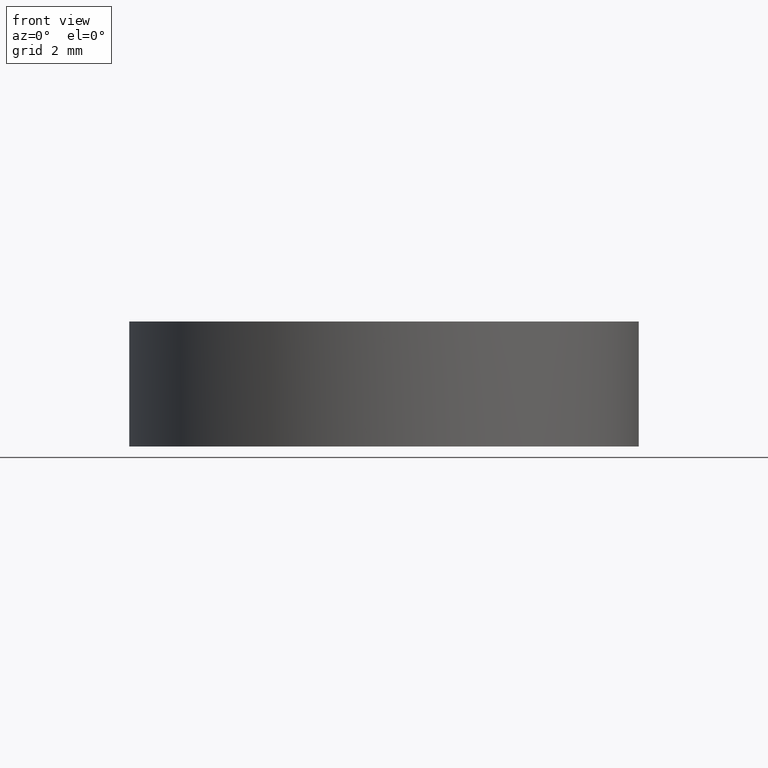
[diagram: clean part render]
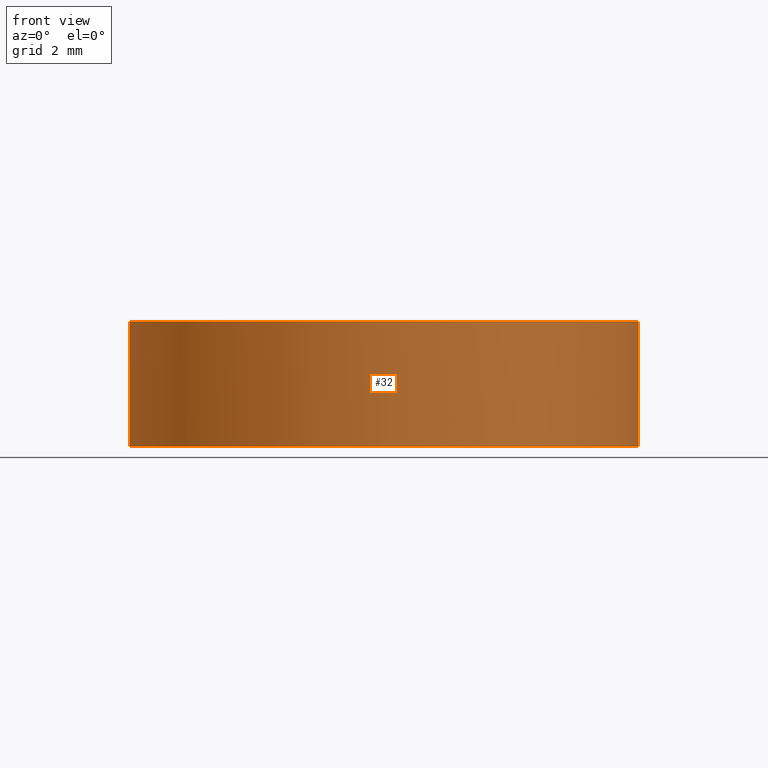
[diagram: same view with one face highlighted and labeled with its STEP entity id]
A machine part, front view. The second image highlights one B-rep face of the part: STEP entity #32.
In plain terms, the highlighted cylindrical surface (partial cylindrical patch) has radius 6.35 mm, axis along (0, 0, 1).
Its self-contained STEP definition (entity closure, byte-faithful):
#4 = EDGE_CURVE ( 'NONE', #113, #148, #168, .T. ) ;
#7 = DIRECTION ( 'NONE',  ( 0.0000000000000000000, 0.0000000000000000000, 1.000000000000000000 ) ) ;
#9 = AXIS2_PLACEMENT_3D ( 'NONE', #27, #78, #26 ) ;
#13 = EDGE_LOOP ( 'NONE', ( #171, #79, #38, #191, #208 ) ) ;
#15 = CARTESIAN_POINT ( 'NONE',  ( 2.498001805406600200E-016, 1.221245327087670000E-015, -0.7148729577328010200 ) ) ;
#26 = DIRECTION ( 'NONE',  ( 1.000000000000000000, 0.0000000000000000000, 0.0000000000000000000 ) ) ;
#27 = CARTESIAN_POINT ( 'NONE',  ( 2.498001805406600200E-016, 1.221245327087670000E-015, -0.7148729577328010200 ) ) ;
#28 = VECTOR ( 'NONE', #7, 1000.000000000000000 ) ;
#29 = EDGE_CURVE ( 'NONE', #49, #31, #99, .T. ) ;
#31 = VERTEX_POINT ( 'NONE', #87 ) ;
#32 = ADVANCED_FACE ( 'NONE', ( #177 ), #226, .T. ) ;
#38 = ORIENTED_EDGE ( 'NONE', *, *, #29, .T. ) ;
#49 = VERTEX_POINT ( 'NONE', #235 ) ;
#61 = DIRECTION ( 'NONE',  ( 0.0000000000000000000, 0.0000000000000000000, 1.000000000000000000 ) ) ;
#77 = CARTESIAN_POINT ( 'NONE',  ( -6.349999999999999600, 1.998896044546239400E-015, -0.7148729577328010200 ) ) ;
#78 = DIRECTION ( 'NONE',  ( 0.0000000000000000000, 0.0000000000000000000, 1.000000000000000000 ) ) ;
#79 = ORIENTED_EDGE ( 'NONE', *, *, #231, .T. ) ;
#84 = DIRECTION ( 'NONE',  ( 0.0000000000000000000, 0.0000000000000000000, 1.000000000000000000 ) ) ;
#87 = CARTESIAN_POINT ( 'NONE',  ( 6.349999999999999600, 1.221245327087670000E-015, -0.7148729577328010200 ) ) ;
#91 = CARTESIAN_POINT ( 'NONE',  ( 6.349999999999999600, 1.221245327087670000E-015, -0.7148729577328010200 ) ) ;
#99 = CIRCLE ( 'NONE', #172, 6.349999999999999600 ) ;
#101 = AXIS2_PLACEMENT_3D ( 'NONE', #215, #214, #138 ) ;
#102 = AXIS2_PLACEMENT_3D ( 'NONE', #170, #61, #114 ) ;
#111 = LINE ( 'NONE', #129, #28 ) ;
#113 = VERTEX_POINT ( 'NONE', #202 ) ;
#114 = DIRECTION ( 'NONE',  ( 1.000000000000000000, 0.0000000000000000000, 0.0000000000000000000 ) ) ;
#121 = DIRECTION ( 'NONE',  ( 1.000000000000000000, 0.0000000000000000000, 0.0000000000000000000 ) ) ;
#123 = LINE ( 'NONE', #91, #167 ) ;
#129 = CARTESIAN_POINT ( 'NONE',  ( -6.349999999999999600, 1.998896044546239400E-015, -0.7148729577328010200 ) ) ;
#133 = CIRCLE ( 'NONE', #9, 6.349999999999999600 ) ;
#138 = DIRECTION ( 'NONE',  ( 1.000000000000000000, 0.0000000000000000000, 0.0000000000000000000 ) ) ;
#148 = VERTEX_POINT ( 'NONE', #217 ) ;
#167 = VECTOR ( 'NONE', #201, 1000.000000000000000 ) ;
#168 = CIRCLE ( 'NONE', #101, 6.349999999999999600 ) ;
#170 = CARTESIAN_POINT ( 'NONE',  ( 2.498001805406600200E-016, 1.221245327087670000E-015, -0.7148729577328010200 ) ) ;
#171 = ORIENTED_EDGE ( 'NONE', *, *, #219, .F. ) ;
#172 = AXIS2_PLACEMENT_3D ( 'NONE', #15, #84, #121 ) ;
#177 = FACE_OUTER_BOUND ( 'NONE', #13, .T. ) ;
#178 = EDGE_CURVE ( 'NONE', #31, #113, #123, .T. ) ;
#191 = ORIENTED_EDGE ( 'NONE', *, *, #178, .T. ) ;
#201 = DIRECTION ( 'NONE',  ( 0.0000000000000000000, 0.0000000000000000000, 1.000000000000000000 ) ) ;
#202 = CARTESIAN_POINT ( 'NONE',  ( 6.349999999999999600, 1.221245327087670000E-015, 2.399999999999999900 ) ) ;
#208 = ORIENTED_EDGE ( 'NONE', *, *, #4, .T. ) ;
#214 = DIRECTION ( 'NONE',  ( -0.0000000000000000000, -0.0000000000000000000, -1.000000000000000000 ) ) ;
#215 = CARTESIAN_POINT ( 'NONE',  ( 2.498001805406600200E-016, 1.221245327087670000E-015, 2.399999999999999900 ) ) ;
#217 = CARTESIAN_POINT ( 'NONE',  ( -6.349999999999999600, 1.998896044546239400E-015, 2.399999999999999900 ) ) ;
#219 = EDGE_CURVE ( 'NONE', #230, #148, #111, .T. ) ;
#226 = CYLINDRICAL_SURFACE ( 'NONE', #102, 6.349999999999999600 ) ;
#230 = VERTEX_POINT ( 'NONE', #77 ) ;
#231 = EDGE_CURVE ( 'NONE', #230, #49, #133, .T. ) ;
#235 = CARTESIAN_POINT ( 'NONE',  ( 4.505772518831313000E-015, -6.349999999999997000, -0.7148729577328011300 ) ) ;